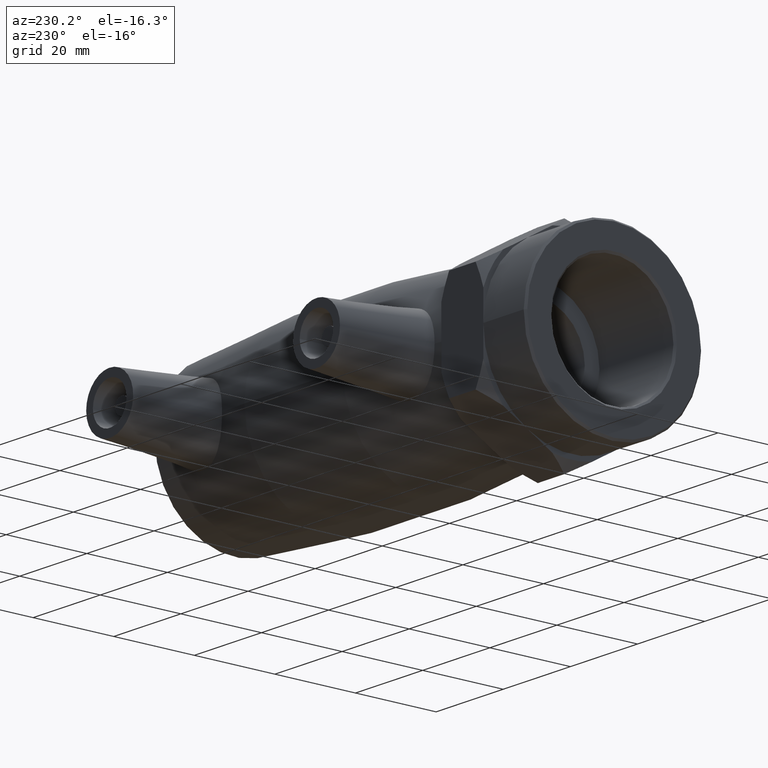
[diagram: clean part render]
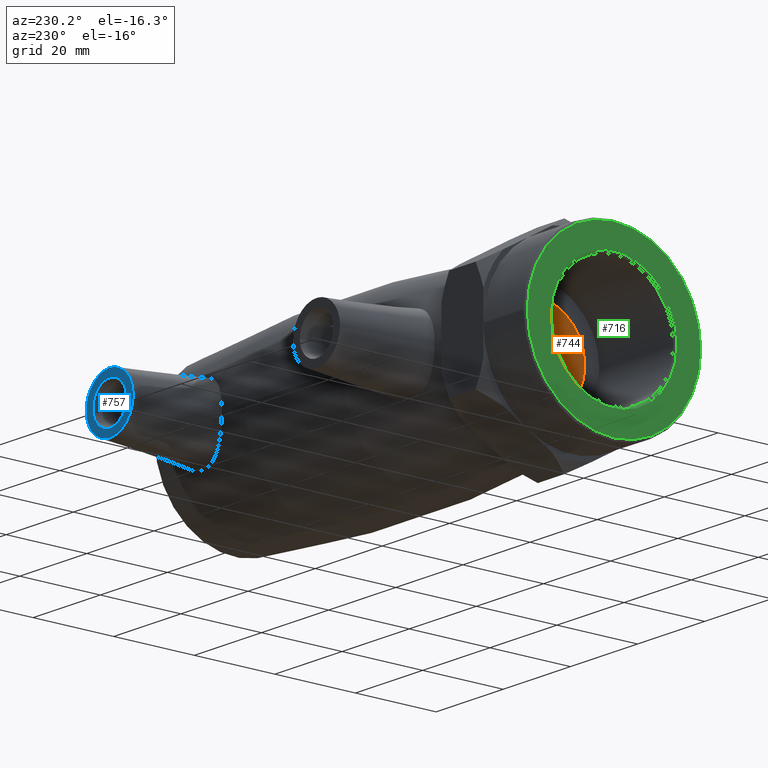
[diagram: same view with three faces highlighted in distinct colors, each labeled with its STEP entity id]
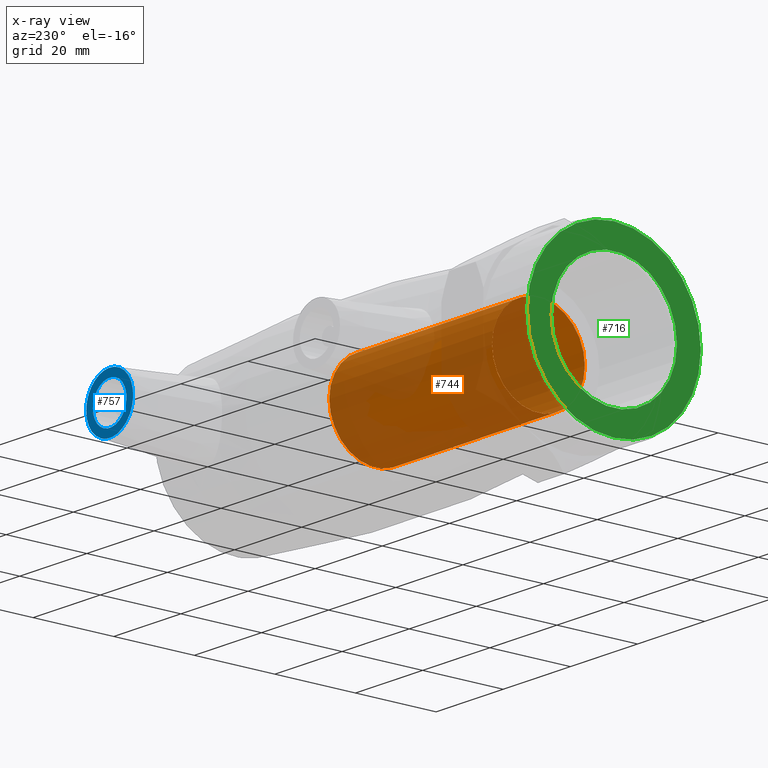
[diagram: x-ray of the same camera — body ghosted, the three highlighted faces saturated]
A machine part, auxiliary view with three faces highlighted in distinct colors.
The next image is the same camera in x-ray (body ghosted, the three faces saturated) — at least one of them is partly hidden behind the body in this view.
Their STEP definitions:

[orange] entity #744 — the highlighted cylindrical surface (bore or boss wall) has radius 11.5 mm, axis along (1, 0, 0).
#92=CYLINDRICAL_SURFACE('',#827,11.5);
#131=FACE_BOUND('',#248,.T.);
#185=FACE_OUTER_BOUND('',#247,.T.);
#247=EDGE_LOOP('',(#637));
#248=EDGE_LOOP('',(#638));
#318=CIRCLE('',#828,11.5);
#319=CIRCLE('',#829,11.5);
#387=VERTEX_POINT('',#1299);
#388=VERTEX_POINT('',#1301);
#482=EDGE_CURVE('',#387,#387,#318,.T.);
#483=EDGE_CURVE('',#388,#388,#319,.T.);
#637=ORIENTED_EDGE('',*,*,#482,.T.);
#638=ORIENTED_EDGE('',*,*,#483,.F.);
#744=ADVANCED_FACE('',(#185,#131),#92,.F.);
#827=AXIS2_PLACEMENT_3D('',#1298,#1011,#1012);
#828=AXIS2_PLACEMENT_3D('',#1300,#1013,#1014);
#829=AXIS2_PLACEMENT_3D('',#1302,#1015,#1016);
#1011=DIRECTION('center_axis',(1.,0.,0.));
#1012=DIRECTION('ref_axis',(0.,1.,0.));
#1013=DIRECTION('center_axis',(1.,0.,0.));
#1014=DIRECTION('ref_axis',(0.,0.,-1.));
#1015=DIRECTION('center_axis',(1.,0.,0.));
#1016=DIRECTION('ref_axis',(0.,0.,-1.));
#1298=CARTESIAN_POINT('Origin',(-22.25,0.,0.));
#1299=CARTESIAN_POINT('',(2.,11.5,0.));
#1300=CARTESIAN_POINT('Origin',(2.,0.,0.));
#1301=CARTESIAN_POINT('',(-46.5,11.5,0.));
#1302=CARTESIAN_POINT('Origin',(-46.5,0.,0.));

[blue] entity #757 — the highlighted planar face has unit normal (0, -1, 0).
#120=PLANE('',#853);
#142=FACE_BOUND('',#272,.T.);
#198=FACE_OUTER_BOUND('',#271,.T.);
#271=EDGE_LOOP('',(#672));
#272=EDGE_LOOP('',(#673));
#324=CIRCLE('',#839,5.);
#330=CIRCLE('',#852,7.);
#393=VERTEX_POINT('',#1316);
#399=VERTEX_POINT('',#1335);
#488=EDGE_CURVE('',#393,#393,#324,.T.);
#494=EDGE_CURVE('',#399,#399,#330,.T.);
#672=ORIENTED_EDGE('',*,*,#494,.T.);
#673=ORIENTED_EDGE('',*,*,#488,.T.);
#757=ADVANCED_FACE('',(#198,#142),#120,.F.);
#839=AXIS2_PLACEMENT_3D('',#1317,#1035,#1036);
#852=AXIS2_PLACEMENT_3D('',#1336,#1061,#1062);
#853=AXIS2_PLACEMENT_3D('',#1372,#1063,#1064);
#1035=DIRECTION('center_axis',(0.,-1.,0.));
#1036=DIRECTION('ref_axis',(1.,0.,0.));
#1061=DIRECTION('center_axis',(0.,1.,0.));
#1062=DIRECTION('ref_axis',(-1.,0.,0.));
#1063=DIRECTION('center_axis',(0.,-1.,0.));
#1064=DIRECTION('ref_axis',(0.,0.,1.));
#1316=CARTESIAN_POINT('',(25.8,42.,-6.12323399573677E-16));
#1317=CARTESIAN_POINT('Origin',(30.8,42.,0.));
#1335=CARTESIAN_POINT('',(37.8,42.,8.57252759403147E-16));
#1336=CARTESIAN_POINT('Origin',(30.8,42.,0.));
#1372=CARTESIAN_POINT('Origin',(30.8,42.,1.32169407693471E-16));

[green] entity #716 — the highlighted planar face has unit normal (-1, 0, 0).
#100=PLANE('',#778);
#127=FACE_BOUND('',#216,.T.);
#157=FACE_OUTER_BOUND('',#215,.T.);
#215=EDGE_LOOP('',(#510));
#216=EDGE_LOOP('',(#511));
#296=CIRCLE('',#777,15.6255);
#297=CIRCLE('',#779,21.52);
#341=VERTEX_POINT('',#1106);
#342=VERTEX_POINT('',#1109);
#412=EDGE_CURVE('',#341,#341,#296,.T.);
#413=EDGE_CURVE('',#342,#342,#297,.T.);
#510=ORIENTED_EDGE('',*,*,#413,.F.);
#511=ORIENTED_EDGE('',*,*,#412,.F.);
#716=ADVANCED_FACE('',(#157,#127),#100,.T.);
#777=AXIS2_PLACEMENT_3D('',#1107,#887,#888);
#778=AXIS2_PLACEMENT_3D('',#1108,#889,#890);
#779=AXIS2_PLACEMENT_3D('',#1110,#891,#892);
#887=DIRECTION('center_axis',(-1.,0.,0.));
#888=DIRECTION('ref_axis',(0.,-1.,0.));
#889=DIRECTION('center_axis',(-1.,0.,0.));
#890=DIRECTION('ref_axis',(0.,0.,1.));
#891=DIRECTION('center_axis',(1.,0.,0.));
#892=DIRECTION('ref_axis',(0.,-1.,0.));
#1106=CARTESIAN_POINT('',(-69.,15.6255,-1.9135718560077E-15));
#1107=CARTESIAN_POINT('Origin',(-69.,0.,0.));
#1108=CARTESIAN_POINT('Origin',(-69.,22.,0.));
#1109=CARTESIAN_POINT('',(-69.,21.52,2.6354399117651E-15));
#1110=CARTESIAN_POINT('Origin',(-69.,0.,0.));